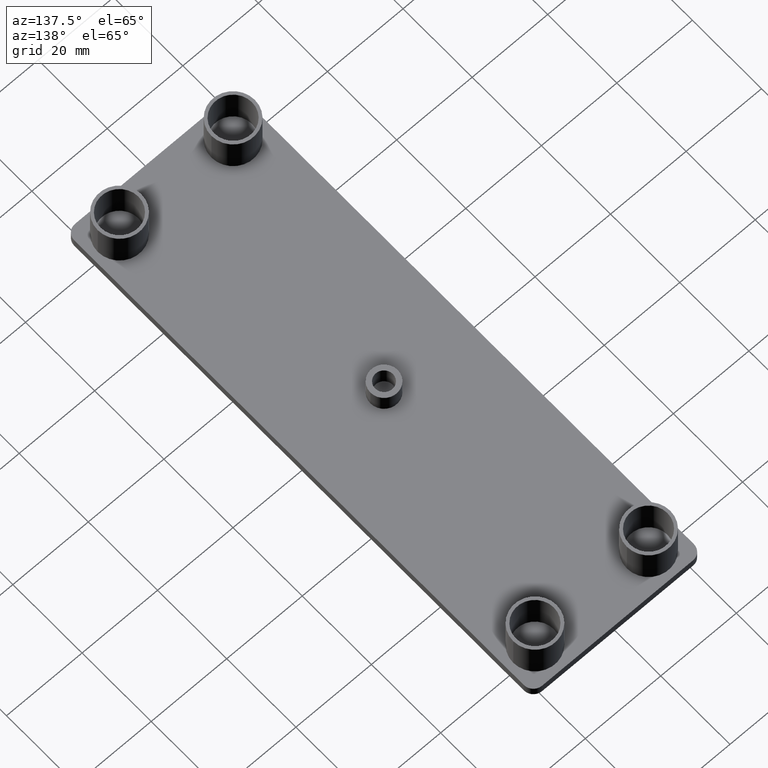
[diagram: clean part render]
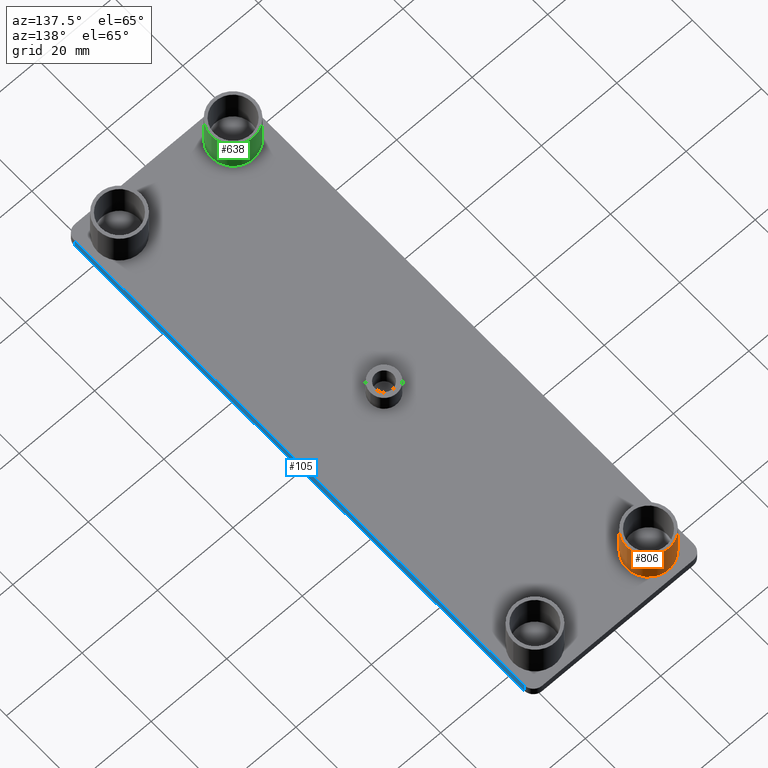
[diagram: same view with three faces highlighted in distinct colors, each labeled with its STEP entity id]
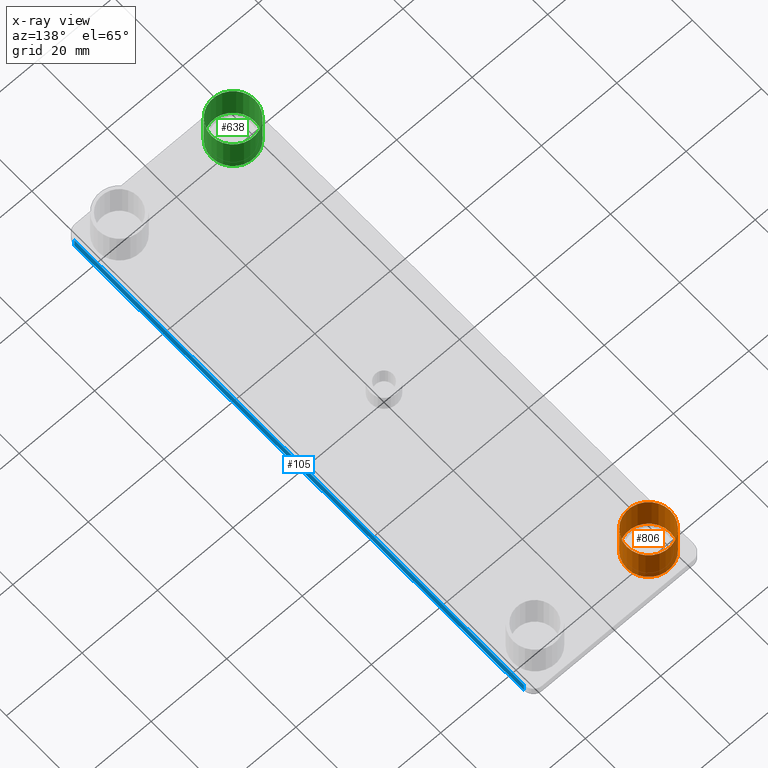
[diagram: x-ray of the same camera — body ghosted, the three highlighted faces saturated]
A machine part, auxiliary view with three faces highlighted in distinct colors.
The next image is the same camera in x-ray (body ghosted, the three faces saturated) — at least one of them is partly hidden behind the body in this view.
Their STEP definitions:

[orange] entity #806 — the highlighted cylindrical surface (bore or boss wall) has radius 5.75 mm, axis along (0, 0, 1).
#333=CARTESIAN_POINT('',(-20.800000333251511,60.050045499759563,0.0));
#334=VERTEX_POINT('',#333);
#335=CARTESIAN_POINT('',(-9.300000333297476,60.050045499759563,0.0));
#336=VERTEX_POINT('',#335);
#337=CARTESIAN_POINT('',(-15.050000333274511,60.050045499759563,0.0));
#338=DIRECTION('',(0.0,0.0,1.0));
#339=DIRECTION('',(1.0,0.0,0.0));
#340=AXIS2_PLACEMENT_3D('',#337,#338,#339);
#341=CIRCLE('',#340,5.749999999977001);
#342=EDGE_CURVE('',#334,#336,#341,.T.);
#344=CARTESIAN_POINT('',(-15.050000333274511,60.050045499759563,0.0));
#345=DIRECTION('',(0.0,0.0,1.0));
#346=DIRECTION('',(1.0,0.0,0.0));
#347=AXIS2_PLACEMENT_3D('',#344,#345,#346);
#348=CIRCLE('',#347,5.749999999977001);
#349=EDGE_CURVE('',#336,#334,#348,.T.);
#772=CARTESIAN_POINT('',(-15.050000333274511,60.050045499759563,0.0));
#773=DIRECTION('',(0.0,0.0,1.0));
#774=DIRECTION('',(1.0,0.0,0.0));
#775=AXIS2_PLACEMENT_3D('',#772,#773,#774);
#776=CYLINDRICAL_SURFACE('',#775,5.749999999977001);
#777=CARTESIAN_POINT('',(-20.800000333251511,60.050045499759563,10.0));
#778=VERTEX_POINT('',#777);
#779=CARTESIAN_POINT('',(-9.300000333297476,60.050045499759563,10.0));
#780=VERTEX_POINT('',#779);
#781=CARTESIAN_POINT('',(-15.050000333274511,60.050045499759563,10.0));
#782=DIRECTION('',(0.0,0.0,1.0));
#783=DIRECTION('',(1.0,0.0,0.0));
#784=AXIS2_PLACEMENT_3D('',#781,#782,#783);
#785=CIRCLE('',#784,5.749999999977001);
#786=EDGE_CURVE('',#778,#780,#785,.T.);
#787=ORIENTED_EDGE('',*,*,#786,.F.);
#788=CARTESIAN_POINT('',(-15.050000333274511,60.050045499759563,10.0));
#789=DIRECTION('',(0.0,0.0,1.0));
#790=DIRECTION('',(1.0,0.0,0.0));
#791=AXIS2_PLACEMENT_3D('',#788,#789,#790);
#792=CIRCLE('',#791,5.749999999977001);
#793=EDGE_CURVE('',#780,#778,#792,.T.);
#794=ORIENTED_EDGE('',*,*,#793,.F.);
#795=CARTESIAN_POINT('',(-9.300000333297476,60.050045499759563,0.0));
#796=DIRECTION('',(0.0,0.0,1.0));
#797=VECTOR('',#796,10.0);
#798=LINE('',#795,#797);
#799=EDGE_CURVE('',#336,#780,#798,.T.);
#800=ORIENTED_EDGE('',*,*,#799,.F.);
#801=ORIENTED_EDGE('',*,*,#349,.T.);
#802=ORIENTED_EDGE('',*,*,#342,.T.);
#803=ORIENTED_EDGE('',*,*,#799,.T.);
#804=EDGE_LOOP('',(#787,#794,#800,#801,#802,#803));
#805=FACE_OUTER_BOUND('',#804,.T.);
#806=ADVANCED_FACE('',(#805),#776,.T.);

[blue] entity #105 — the highlighted planar face has unit normal (-1, -0, 0).
#48=CARTESIAN_POINT('',(22.500000333244770,-65.000000499740054,-2.500000000000000));
#49=VERTEX_POINT('',#48);
#57=CARTESIAN_POINT('',(22.500000333244770,-65.000000499740054,0.0));
#58=VERTEX_POINT('',#57);
#59=CARTESIAN_POINT('',(22.500000333244770,-65.000000499740054,0.0));
#60=DIRECTION('',(0.0,0.0,-1.0));
#61=VECTOR('',#60,2.500000000000000);
#62=LINE('',#59,#61);
#63=EDGE_CURVE('',#58,#49,#62,.T.);
#75=CARTESIAN_POINT('',(22.500000333244770,-65.000000499740054,0.0));
#76=DIRECTION('',(-1.0,-5.128226E-009,0.0));
#77=DIRECTION('',(-5.128226E-009,1.0,0.0));
#78=AXIS2_PLACEMENT_3D('',#75,#76,#77);
#79=PLANE('',#78);
#80=ORIENTED_EDGE('',*,*,#63,.T.);
#81=CARTESIAN_POINT('',(22.499999666575377,65.000000499740054,-2.500000000000000));
#82=VERTEX_POINT('',#81);
#83=CARTESIAN_POINT('',(22.500000333244696,-65.000000499739969,-2.500000000000000));
#84=DIRECTION('',(-5.128225E-009,1.0,0.0));
#85=VECTOR('',#84,130.000000999480020);
#86=LINE('',#83,#85);
#87=EDGE_CURVE('',#49,#82,#86,.T.);
#88=ORIENTED_EDGE('',*,*,#87,.T.);
#89=CARTESIAN_POINT('',(22.499999666575377,65.000000499740054,0.0));
#90=VERTEX_POINT('',#89);
#91=CARTESIAN_POINT('',(22.499999666575377,65.000000499740054,0.0));
#92=DIRECTION('',(0.0,0.0,-1.0));
#93=VECTOR('',#92,2.500000000000000);
#94=LINE('',#91,#93);
#95=EDGE_CURVE('',#90,#82,#94,.T.);
#96=ORIENTED_EDGE('',*,*,#95,.F.);
#97=CARTESIAN_POINT('',(22.500000333244696,-65.000000499739969,0.0));
#98=DIRECTION('',(-5.128225E-009,1.0,0.0));
#99=VECTOR('',#98,130.000000999480020);
#100=LINE('',#97,#99);
#101=EDGE_CURVE('',#58,#90,#100,.T.);
#102=ORIENTED_EDGE('',*,*,#101,.F.);
#103=EDGE_LOOP('',(#80,#88,#96,#102));
#104=FACE_OUTER_BOUND('',#103,.T.);
#105=ADVANCED_FACE('',(#104),#79,.F.);

[green] entity #638 — the highlighted cylindrical surface (bore or boss wall) has radius 5.75 mm, axis along (0, 0, 1).
#293=CARTESIAN_POINT('',(-20.799998666582233,-60.050044499759906,0.0));
#294=VERTEX_POINT('',#293);
#295=CARTESIAN_POINT('',(-9.299998666628198,-60.050044499759906,0.0));
#296=VERTEX_POINT('',#295);
#297=CARTESIAN_POINT('',(-15.049998666605234,-60.050044499759906,0.0));
#298=DIRECTION('',(0.0,0.0,1.0));
#299=DIRECTION('',(1.0,0.0,0.0));
#300=AXIS2_PLACEMENT_3D('',#297,#298,#299);
#301=CIRCLE('',#300,5.749999999977001);
#302=EDGE_CURVE('',#294,#296,#301,.T.);
#304=CARTESIAN_POINT('',(-15.049998666605234,-60.050044499759906,0.0));
#305=DIRECTION('',(0.0,0.0,1.0));
#306=DIRECTION('',(1.0,0.0,0.0));
#307=AXIS2_PLACEMENT_3D('',#304,#305,#306);
#308=CIRCLE('',#307,5.749999999977001);
#309=EDGE_CURVE('',#296,#294,#308,.T.);
#604=CARTESIAN_POINT('',(-15.049998666605234,-60.050044499759906,0.0));
#605=DIRECTION('',(0.0,0.0,1.0));
#606=DIRECTION('',(1.0,0.0,0.0));
#607=AXIS2_PLACEMENT_3D('',#604,#605,#606);
#608=CYLINDRICAL_SURFACE('',#607,5.749999999977001);
#609=CARTESIAN_POINT('',(-20.799998666582233,-60.050044499759906,10.0));
#610=VERTEX_POINT('',#609);
#611=CARTESIAN_POINT('',(-9.299998666628198,-60.050044499759906,10.0));
#612=VERTEX_POINT('',#611);
#613=CARTESIAN_POINT('',(-15.049998666605234,-60.050044499759906,10.0));
#614=DIRECTION('',(0.0,0.0,1.0));
#615=DIRECTION('',(1.0,0.0,0.0));
#616=AXIS2_PLACEMENT_3D('',#613,#614,#615);
#617=CIRCLE('',#616,5.749999999977001);
#618=EDGE_CURVE('',#610,#612,#617,.T.);
#619=ORIENTED_EDGE('',*,*,#618,.F.);
#620=CARTESIAN_POINT('',(-15.049998666605234,-60.050044499759906,10.0));
#621=DIRECTION('',(0.0,0.0,1.0));
#622=DIRECTION('',(1.0,0.0,0.0));
#623=AXIS2_PLACEMENT_3D('',#620,#621,#622);
#624=CIRCLE('',#623,5.749999999977001);
#625=EDGE_CURVE('',#612,#610,#624,.T.);
#626=ORIENTED_EDGE('',*,*,#625,.F.);
#627=CARTESIAN_POINT('',(-9.299998666628198,-60.050044499759906,0.0));
#628=DIRECTION('',(0.0,0.0,1.0));
#629=VECTOR('',#628,10.0);
#630=LINE('',#627,#629);
#631=EDGE_CURVE('',#296,#612,#630,.T.);
#632=ORIENTED_EDGE('',*,*,#631,.F.);
#633=ORIENTED_EDGE('',*,*,#309,.T.);
#634=ORIENTED_EDGE('',*,*,#302,.T.);
#635=ORIENTED_EDGE('',*,*,#631,.T.);
#636=EDGE_LOOP('',(#619,#626,#632,#633,#634,#635));
#637=FACE_OUTER_BOUND('',#636,.T.);
#638=ADVANCED_FACE('',(#637),#608,.T.);